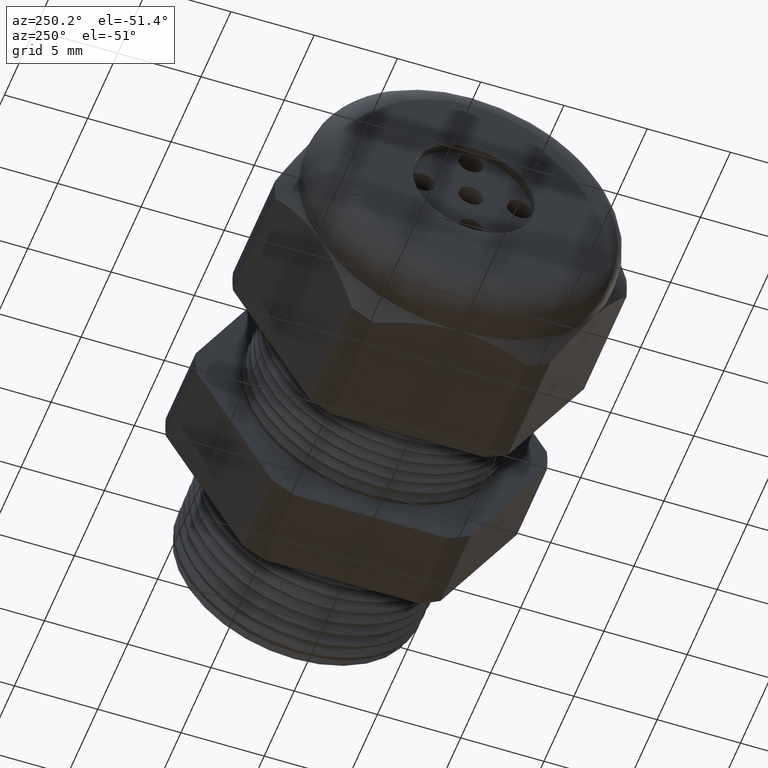
[diagram: clean part render]
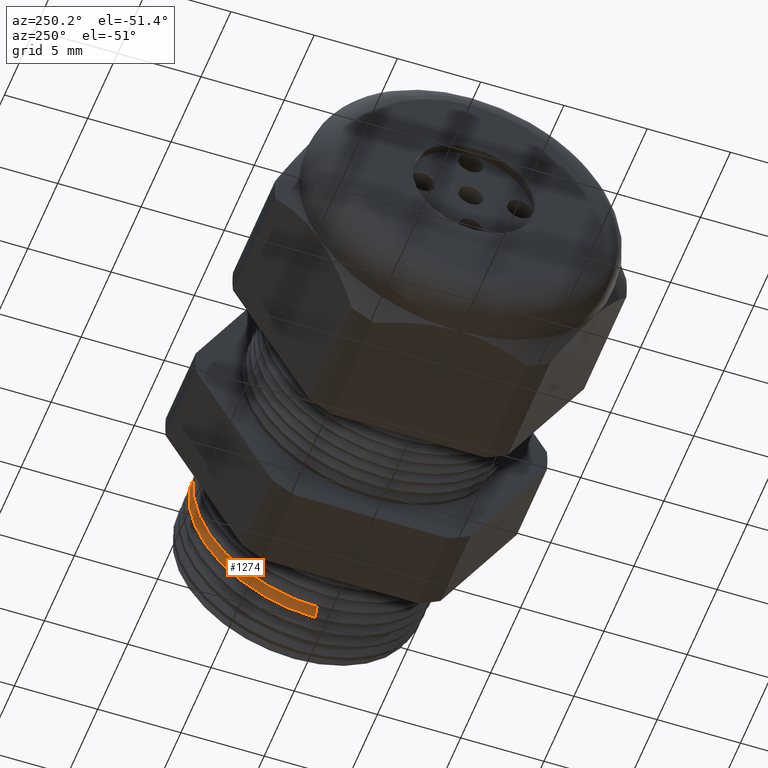
[diagram: same view with one face highlighted and labeled with its STEP entity id]
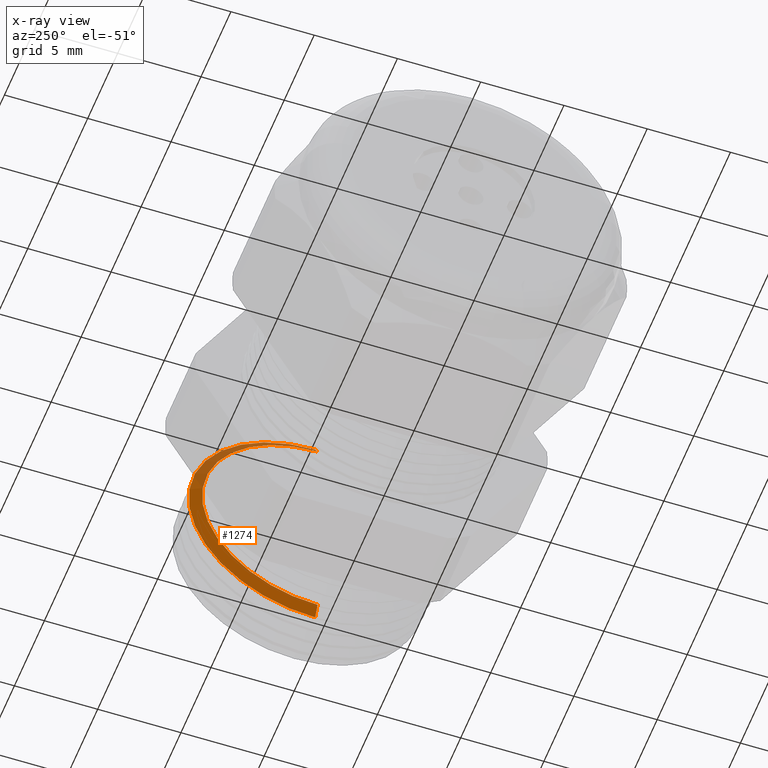
[diagram: x-ray of the same camera — body ghosted, the highlighted face saturated]
A machine part, auxiliary view. The second image highlights one B-rep face of the part: STEP entity #1274.
The next image is the same camera in x-ray: the body ghosted, the highlighted face saturated — about 21% of this face is hidden behind the body in this view.
In plain terms, the highlighted conical surface has half-angle 58.5 deg.
Its self-contained STEP definition (entity closure, byte-faithful):
#1274 = ADVANCED_FACE ( 'NONE', ( #3750 ), #3748, .T. ) ;
#1275 = EDGE_LOOP ( 'NONE', ( #1276, #1357, #1360, #1363 ) ) ;
#1276 = ORIENTED_EDGE ( 'NONE', *, *, #1277, .T. ) ;
#1277 = EDGE_CURVE ( 'NONE', #1278, #1279, #3743, .T. ) ;
#1278 = VERTEX_POINT ( 'NONE', #3739 ) ;
#1279 = VERTEX_POINT ( 'NONE', #3738 ) ;
#1305 = EDGE_CURVE ( 'NONE', #1278, #1362, #3768, .T. ) ;
#1357 = ORIENTED_EDGE ( 'NONE', *, *, #1358, .T. ) ;
#1358 = EDGE_CURVE ( 'NONE', #1279, #1359, #3917, .T. ) ;
#1359 = VERTEX_POINT ( 'NONE', #3913 ) ;
#1360 = ORIENTED_EDGE ( 'NONE', *, *, #1361, .T. ) ;
#1361 = EDGE_CURVE ( 'NONE', #1359, #1362, #3912, .T. ) ;
#1362 = VERTEX_POINT ( 'NONE', #3907 ) ;
#1363 = ORIENTED_EDGE ( 'NONE', *, *, #1305, .F. ) ;
#1758 = DIRECTION ( 'NONE',  ( 0.5224985647159332600, 0.0000000000000000000, -0.8526401643541019500 ) ) ;
#3009 = VECTOR ( 'NONE', #1758, 39.37007874015747400 ) ;
#3738 = CARTESIAN_POINT ( 'NONE',  ( -0.1534707356790751800, 0.0000000000000000000, 0.2730123959962614800 ) ) ;
#3739 = CARTESIAN_POINT ( 'NONE',  ( -0.1534707356790751800, 3.507076185518024000E-017, -0.2730123959962614800 ) ) ;
#3740 = DIRECTION ( 'NONE',  ( 0.0000000000000000000, 0.0000000000000000000, -1.000000000000000000 ) ) ;
#3741 = DIRECTION ( 'NONE',  ( 1.000000000000000000, 0.0000000000000000000, 0.0000000000000000000 ) ) ;
#3742 = AXIS2_PLACEMENT_3D ( 'NONE', #3749, #3741, #3740 ) ;
#3743 = CIRCLE ( 'NONE', #3742, 0.2730123959962614800 ) ;
#3744 = DIRECTION ( 'NONE',  ( 0.0000000000000000000, 0.0000000000000000000, -1.000000000000000000 ) ) ;
#3745 = DIRECTION ( 'NONE',  ( 1.000000000000000000, 0.0000000000000000000, 0.0000000000000000000 ) ) ;
#3746 = CARTESIAN_POINT ( 'NONE',  ( -0.1534707356790751800, 0.0000000000000000000, 0.0000000000000000000 ) ) ;
#3747 = AXIS2_PLACEMENT_3D ( 'NONE', #3746, #3745, #3744 ) ;
#3748 = CONICAL_SURFACE ( 'NONE', #3747, 0.2730123959962614800, 1.021017612416701200 ) ;
#3749 = CARTESIAN_POINT ( 'NONE',  ( -0.1534707356790751800, 0.0000000000000000000, 0.0000000000000000000 ) ) ;
#3750 = FACE_OUTER_BOUND ( 'NONE', #1275, .T. ) ;
#3767 = CARTESIAN_POINT ( 'NONE',  ( -0.1534707356790751800, 0.0000000000000000000, -0.2730123959962614800 ) ) ;
#3768 = LINE ( 'NONE', #3767, #3009 ) ;
#3907 = CARTESIAN_POINT ( 'NONE',  ( -0.1375819195166189400, 3.660966335649895900E-017, -0.2989405874574451200 ) ) ;
#3908 = DIRECTION ( 'NONE',  ( 0.0000000000000000000, 0.0000000000000000000, -1.000000000000000000 ) ) ;
#3909 = DIRECTION ( 'NONE',  ( -1.000000000000000000, 0.0000000000000000000, 0.0000000000000000000 ) ) ;
#3910 = CARTESIAN_POINT ( 'NONE',  ( -0.1375819195166189400, 0.0000000000000000000, 0.0000000000000000000 ) ) ;
#3911 = AXIS2_PLACEMENT_3D ( 'NONE', #3910, #3909, #3908 ) ;
#3912 = CIRCLE ( 'NONE', #3911, 0.2989405874574451200 ) ;
#3913 = CARTESIAN_POINT ( 'NONE',  ( -0.1375819195166189400, 0.0000000000000000000, 0.2989405874574451200 ) ) ;
#3914 = DIRECTION ( 'NONE',  ( 0.5224985647159332600, 1.044183048100724200E-016, 0.8526401643541019500 ) ) ;
#3915 = VECTOR ( 'NONE', #3914, 39.37007874015747400 ) ;
#3916 = CARTESIAN_POINT ( 'NONE',  ( -0.1534707356790751800, 3.343437568843712800E-017, 0.2730123959962614800 ) ) ;
#3917 = LINE ( 'NONE', #3916, #3915 ) ;